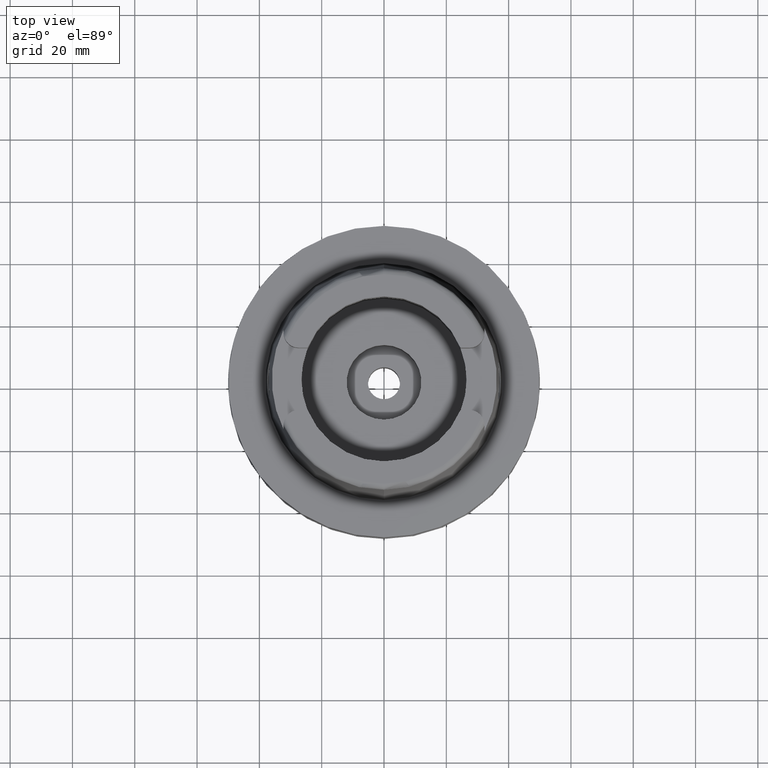
[diagram: clean part render]
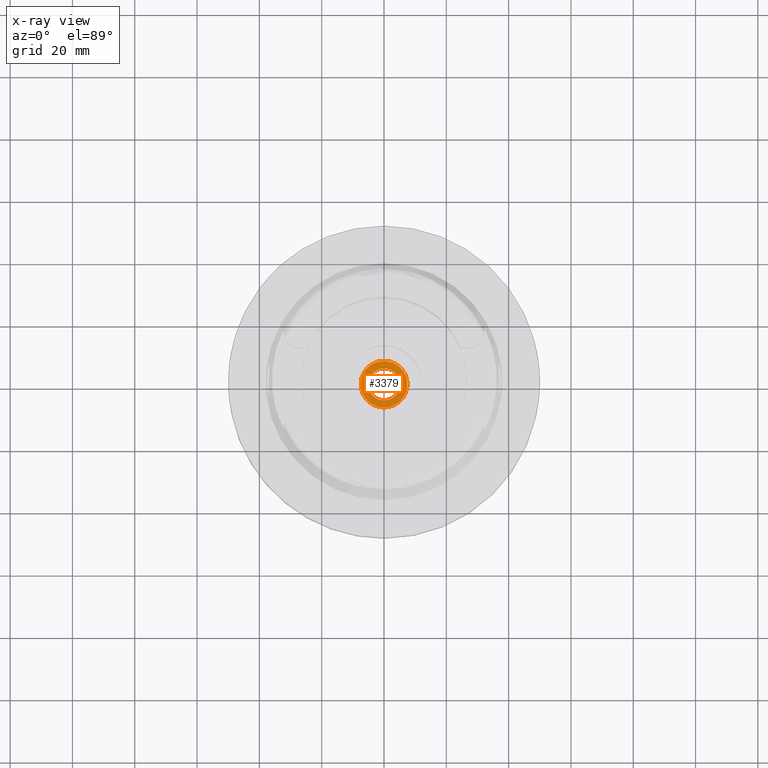
[diagram: x-ray — body ghosted, one internal face saturated and labeled with its STEP entity id]
A machine part, top view, then the same camera in x-ray: the body is ghosted and one INTERNAL B-rep face — a face not visible from any outside direction — is saturated and labeled: STEP entity #3379.
In plain terms, the highlighted planar face has unit normal (0, 0, -1).
Its self-contained STEP definition (entity closure, byte-faithful):
#917=CARTESIAN_POINT('',(0.E0,1.951719603801E-14,-4.95E1));
#918=DIRECTION('',(0.E0,0.E0,1.E0));
#919=DIRECTION('',(0.E0,-1.E0,0.E0));
#920=AXIS2_PLACEMENT_3D('',#917,#918,#919);
#925=CARTESIAN_POINT('',(0.E0,1.951719603801E-14,-4.95E1));
#926=DIRECTION('',(0.E0,0.E0,1.E0));
#927=DIRECTION('',(0.E0,1.E0,0.E0));
#928=AXIS2_PLACEMENT_3D('',#925,#926,#927);
#933=CARTESIAN_POINT('',(0.E0,1.951719603801E-14,-4.95E1));
#934=DIRECTION('',(0.E0,0.E0,-1.E0));
#935=DIRECTION('',(0.E0,-1.E0,0.E0));
#936=AXIS2_PLACEMENT_3D('',#933,#934,#935);
#941=CARTESIAN_POINT('',(0.E0,1.951719603801E-14,-4.95E1));
#942=DIRECTION('',(0.E0,0.E0,-1.E0));
#943=DIRECTION('',(0.E0,1.E0,0.E0));
#944=AXIS2_PLACEMENT_3D('',#941,#942,#943);
#2520=CARTESIAN_POINT('',(0.E0,5.125E0,-4.95E1));
#2521=VERTEX_POINT('',#2520);
#2522=CARTESIAN_POINT('',(0.E0,-5.125E0,-4.95E1));
#2523=VERTEX_POINT('',#2522);
#2524=CARTESIAN_POINT('',(0.E0,-7.5E0,-4.95E1));
#2525=CARTESIAN_POINT('',(0.E0,7.5E0,-4.95E1));
#2526=VERTEX_POINT('',#2524);
#2527=VERTEX_POINT('',#2525);
#3364=CARTESIAN_POINT('',(0.E0,0.E0,-4.95E1));
#3365=DIRECTION('',(0.E0,0.E0,-1.E0));
#3366=DIRECTION('',(0.E0,-1.E0,0.E0));
#3367=AXIS2_PLACEMENT_3D('',#3364,#3365,#3366);
#3368=PLANE('',#3367);
#3370=ORIENTED_EDGE('',*,*,#3369,.T.);
#3372=ORIENTED_EDGE('',*,*,#3371,.T.);
#3373=EDGE_LOOP('',(#3370,#3372));
#3374=FACE_OUTER_BOUND('',#3373,.F.);
#3375=ORIENTED_EDGE('',*,*,#3357,.T.);
#3376=ORIENTED_EDGE('',*,*,#3346,.T.);
#3377=EDGE_LOOP('',(#3375,#3376));
#3378=FACE_BOUND('',#3377,.F.);
#921=CIRCLE('',#920,7.5E0);
#929=CIRCLE('',#928,7.5E0);
#937=CIRCLE('',#936,5.125E0);
#945=CIRCLE('',#944,5.125E0);
#3346=EDGE_CURVE('',#2521,#2523,#945,.T.);
#3357=EDGE_CURVE('',#2523,#2521,#937,.T.);
#3369=EDGE_CURVE('',#2526,#2527,#921,.T.);
#3371=EDGE_CURVE('',#2527,#2526,#929,.T.);
#3379=ADVANCED_FACE('',(#3374,#3378),#3368,.T.);